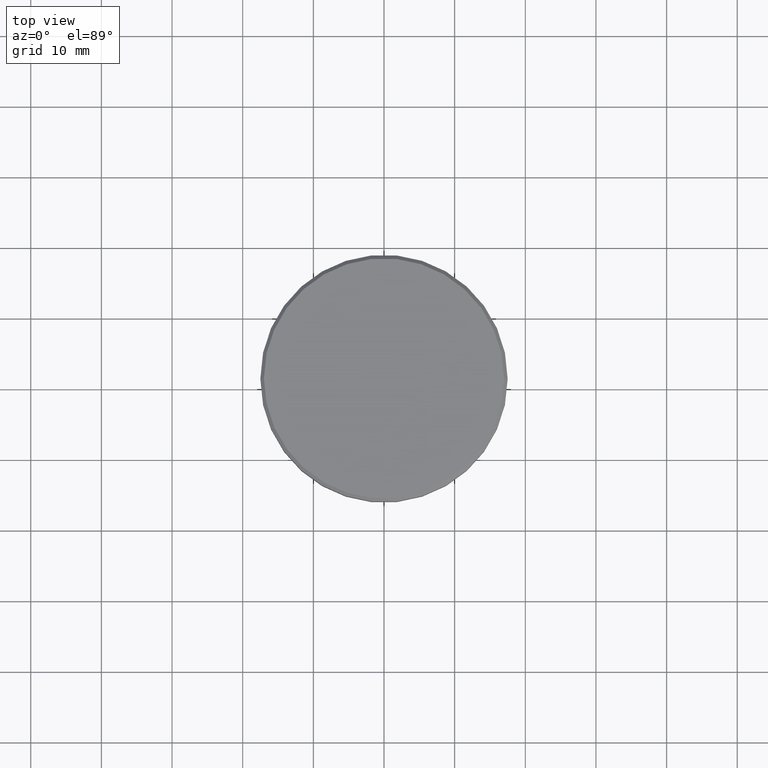
[diagram: clean part render]
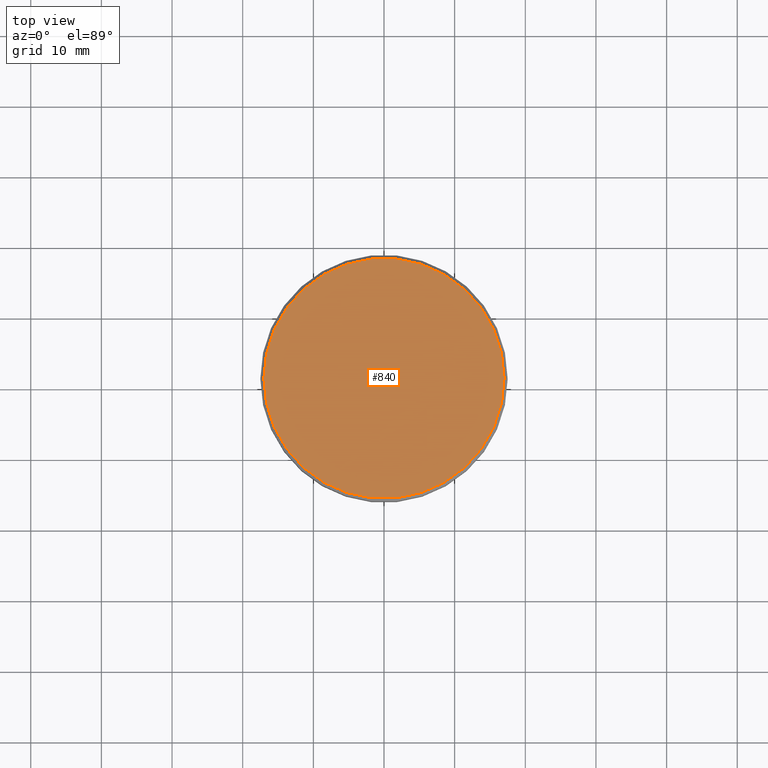
[diagram: same view with one face highlighted and labeled with its STEP entity id]
A machine part, top view. The second image highlights one B-rep face of the part: STEP entity #840.
In plain terms, the highlighted planar face has unit normal (0, -0, 1).
Its self-contained STEP definition (entity closure, byte-faithful):
#28 = DIRECTION ( 'NONE',  ( -0.000000000000000000, -0.000000000000000000, 1.000000000000000000 ) ) ;
#363 = VERTEX_POINT ( 'NONE', #1160 ) ;
#392 = AXIS2_PLACEMENT_3D ( 'NONE', #475, #28, #1112 ) ;
#396 = EDGE_LOOP ( 'NONE', ( #667, #841 ) ) ;
#406 = CARTESIAN_POINT ( 'NONE',  ( 0.000000000000000000, 0.000000000000000000, 0.000000000000000000 ) ) ;
#418 = DIRECTION ( 'NONE',  ( -0.000000000000000000, -0.000000000000000000, 1.000000000000000000 ) ) ;
#442 = AXIS2_PLACEMENT_3D ( 'NONE', #406, #418, #1132 ) ;
#451 = VERTEX_POINT ( 'NONE', #720 ) ;
#475 = CARTESIAN_POINT ( 'NONE',  ( 0.000000000000000000, 0.000000000000000000, 0.000000000000000000 ) ) ;
#546 = DIRECTION ( 'NONE',  ( 1.000000000000000000, 0.000000000000000000, 0.000000000000000000 ) ) ;
#602 = EDGE_CURVE ( 'NONE', #363, #451, #911, .T. ) ;
#641 = CARTESIAN_POINT ( 'NONE',  ( 0.000000000000000000, 0.000000000000000000, 0.000000000000000000 ) ) ;
#667 = ORIENTED_EDGE ( 'NONE', *, *, #602, .T. ) ;
#720 = CARTESIAN_POINT ( 'NONE',  ( 17.00000000000000000, 2.112515728529184067E-15, 0.000000000000000000 ) ) ;
#732 = PLANE ( 'NONE',  #874 ) ;
#809 = FACE_OUTER_BOUND ( 'NONE', #396, .T. ) ;
#840 = ADVANCED_FACE ( 'NONE', ( #809 ), #732, .T. ) ;
#841 = ORIENTED_EDGE ( 'NONE', *, *, #1171, .T. ) ;
#874 = AXIS2_PLACEMENT_3D ( 'NONE', #641, #997, #546 ) ;
#894 = CIRCLE ( 'NONE', #392, 17.00000000000000000 ) ;
#911 = CIRCLE ( 'NONE', #442, 17.00000000000000000 ) ;
#997 = DIRECTION ( 'NONE',  ( 0.000000000000000000, -0.000000000000000000, 1.000000000000000000 ) ) ;
#1112 = DIRECTION ( 'NONE',  ( 1.000000000000000000, 0.000000000000000000, 0.000000000000000000 ) ) ;
#1132 = DIRECTION ( 'NONE',  ( 1.000000000000000000, 0.000000000000000000, 0.000000000000000000 ) ) ;
#1160 = CARTESIAN_POINT ( 'NONE',  ( -17.00000000000000000, 0.000000000000000000, 0.000000000000000000 ) ) ;
#1171 = EDGE_CURVE ( 'NONE', #451, #363, #894, .T. ) ;